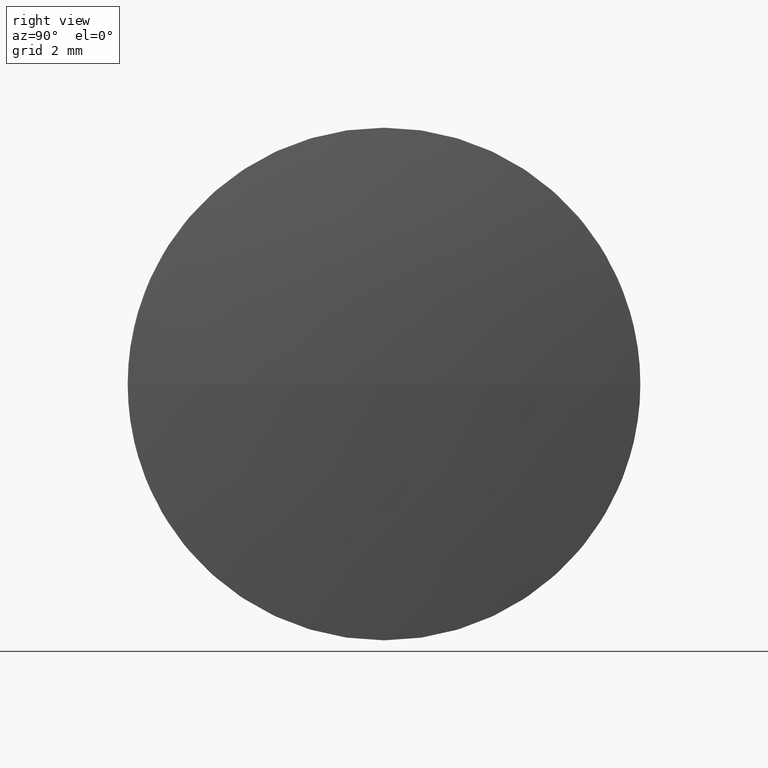
[diagram: clean part render]
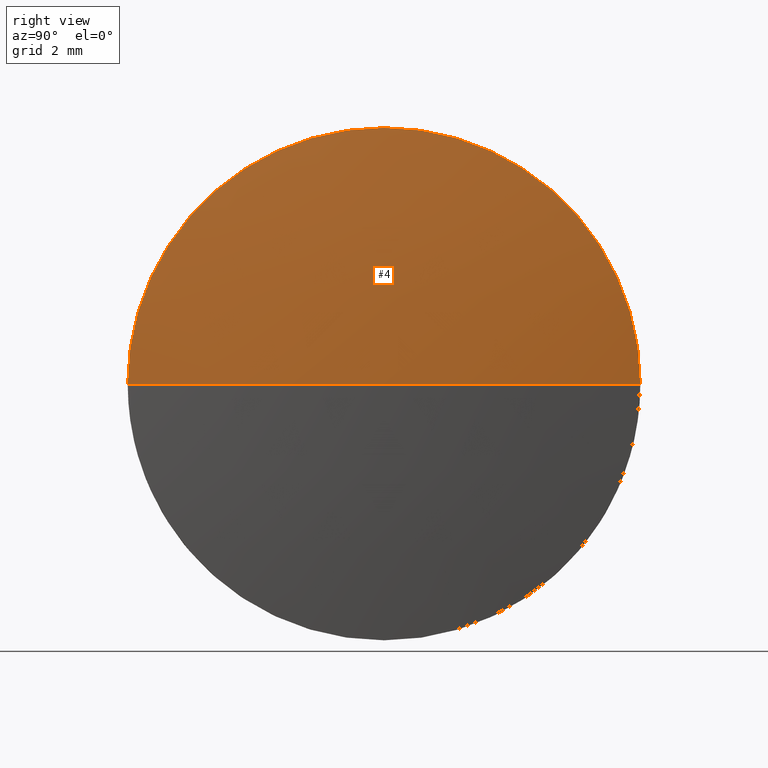
[diagram: same view with one face highlighted and labeled with its STEP entity id]
A machine part, right view. The second image highlights one B-rep face of the part: STEP entity #4.
In plain terms, the highlighted spherical surface has radius 50.6031 mm.
Its self-contained STEP definition (entity closure, byte-faithful):
#2 = CIRCLE ( 'NONE', #34, 50.60312499999986400 ) ;
#3 = EDGE_CURVE ( 'NONE', #176, #165, #163, .T. ) ;
#4 = ADVANCED_FACE ( 'NONE', ( #18 ), #125, .T. ) ;
#7 = DIRECTION ( 'NONE',  ( 0.0000000000000000000, -1.000000000000000000, 0.0000000000000000000 ) ) ;
#14 = AXIS2_PLACEMENT_3D ( 'NONE', #182, #46, #99 ) ;
#18 = FACE_OUTER_BOUND ( 'NONE', #92, .T. ) ;
#32 = CARTESIAN_POINT ( 'NONE',  ( 553.8125703644948300, 54.82747999081997400, 6.350000000000001400 ) ) ;
#34 = AXIS2_PLACEMENT_3D ( 'NONE', #175, #161, #84 ) ;
#40 = ORIENTED_EDGE ( 'NONE', *, *, #173, .T. ) ;
#46 = DIRECTION ( 'NONE',  ( -1.000000000000000000, -0.0000000000000000000, -0.0000000000000000000 ) ) ;
#50 = AXIS2_PLACEMENT_3D ( 'NONE', #95, #62, #7 ) ;
#62 = DIRECTION ( 'NONE',  ( 0.0000000000000000000, 0.0000000000000000000, 1.000000000000000000 ) ) ;
#64 = DIRECTION ( 'NONE',  ( 0.0000000000000000000, 0.0000000000000000000, 1.000000000000000000 ) ) ;
#65 = DIRECTION ( 'NONE',  ( 0.0000000000000000000, -1.224646799147353200E-016, 1.000000000000000000 ) ) ;
#67 = CARTESIAN_POINT ( 'NONE',  ( 554.2125703644948100, 54.82747999082007300, 0.0000000000000000000 ) ) ;
#74 = EDGE_CURVE ( 'NONE', #79, #176, #2, .T. ) ;
#75 = CIRCLE ( 'NONE', #149, 6.350000000000001400 ) ;
#78 = DIRECTION ( 'NONE',  ( 0.0000000000000000000, -1.000000000000000000, -1.224646799147353200E-016 ) ) ;
#79 = VERTEX_POINT ( 'NONE', #67 ) ;
#84 = DIRECTION ( 'NONE',  ( -1.000000000000000000, 0.0000000000000000000, 0.0000000000000000000 ) ) ;
#85 = CIRCLE ( 'NONE', #145, 50.60312499999987100 ) ;
#92 = EDGE_LOOP ( 'NONE', ( #105, #40, #133, #150 ) ) ;
#95 = CARTESIAN_POINT ( 'NONE',  ( 503.6094453644949500, 54.82747999082007300, 0.0000000000000000000 ) ) ;
#98 = DIRECTION ( 'NONE',  ( -1.000000000000000000, -0.0000000000000000000, -0.0000000000000000000 ) ) ;
#99 = DIRECTION ( 'NONE',  ( 0.0000000000000000000, 0.0000000000000000000, 1.000000000000000000 ) ) ;
#105 = ORIENTED_EDGE ( 'NONE', *, *, #74, .F. ) ;
#125 = SPHERICAL_SURFACE ( 'NONE', #50, 50.60312499999987100 ) ;
#133 = ORIENTED_EDGE ( 'NONE', *, *, #181, .F. ) ;
#141 = CARTESIAN_POINT ( 'NONE',  ( 553.8125703644948300, 54.82747999081997400, 0.0000000000000000000 ) ) ;
#145 = AXIS2_PLACEMENT_3D ( 'NONE', #154, #65, #78 ) ;
#149 = AXIS2_PLACEMENT_3D ( 'NONE', #141, #98, #64 ) ;
#150 = ORIENTED_EDGE ( 'NONE', *, *, #3, .F. ) ;
#154 = CARTESIAN_POINT ( 'NONE',  ( 503.6094453644949500, 54.82747999082007300, 0.0000000000000000000 ) ) ;
#161 = DIRECTION ( 'NONE',  ( 0.0000000000000000000, 0.0000000000000000000, -1.000000000000000000 ) ) ;
#163 = CIRCLE ( 'NONE', #14, 6.350000000000001400 ) ;
#165 = VERTEX_POINT ( 'NONE', #32 ) ;
#167 = CARTESIAN_POINT ( 'NONE',  ( 553.8125703644948300, 48.47747999082014300, 0.0000000000000000000 ) ) ;
#172 = VERTEX_POINT ( 'NONE', #183 ) ;
#173 = EDGE_CURVE ( 'NONE', #79, #172, #85, .T. ) ;
#175 = CARTESIAN_POINT ( 'NONE',  ( 503.6094453644949500, 54.82747999082007300, 0.0000000000000000000 ) ) ;
#176 = VERTEX_POINT ( 'NONE', #167 ) ;
#181 = EDGE_CURVE ( 'NONE', #165, #172, #75, .T. ) ;
#182 = CARTESIAN_POINT ( 'NONE',  ( 553.8125703644948300, 54.82747999081997400, 0.0000000000000000000 ) ) ;
#183 = CARTESIAN_POINT ( 'NONE',  ( 553.8125703644948300, 61.17747999081989700, 7.776507174585485100E-016 ) ) ;